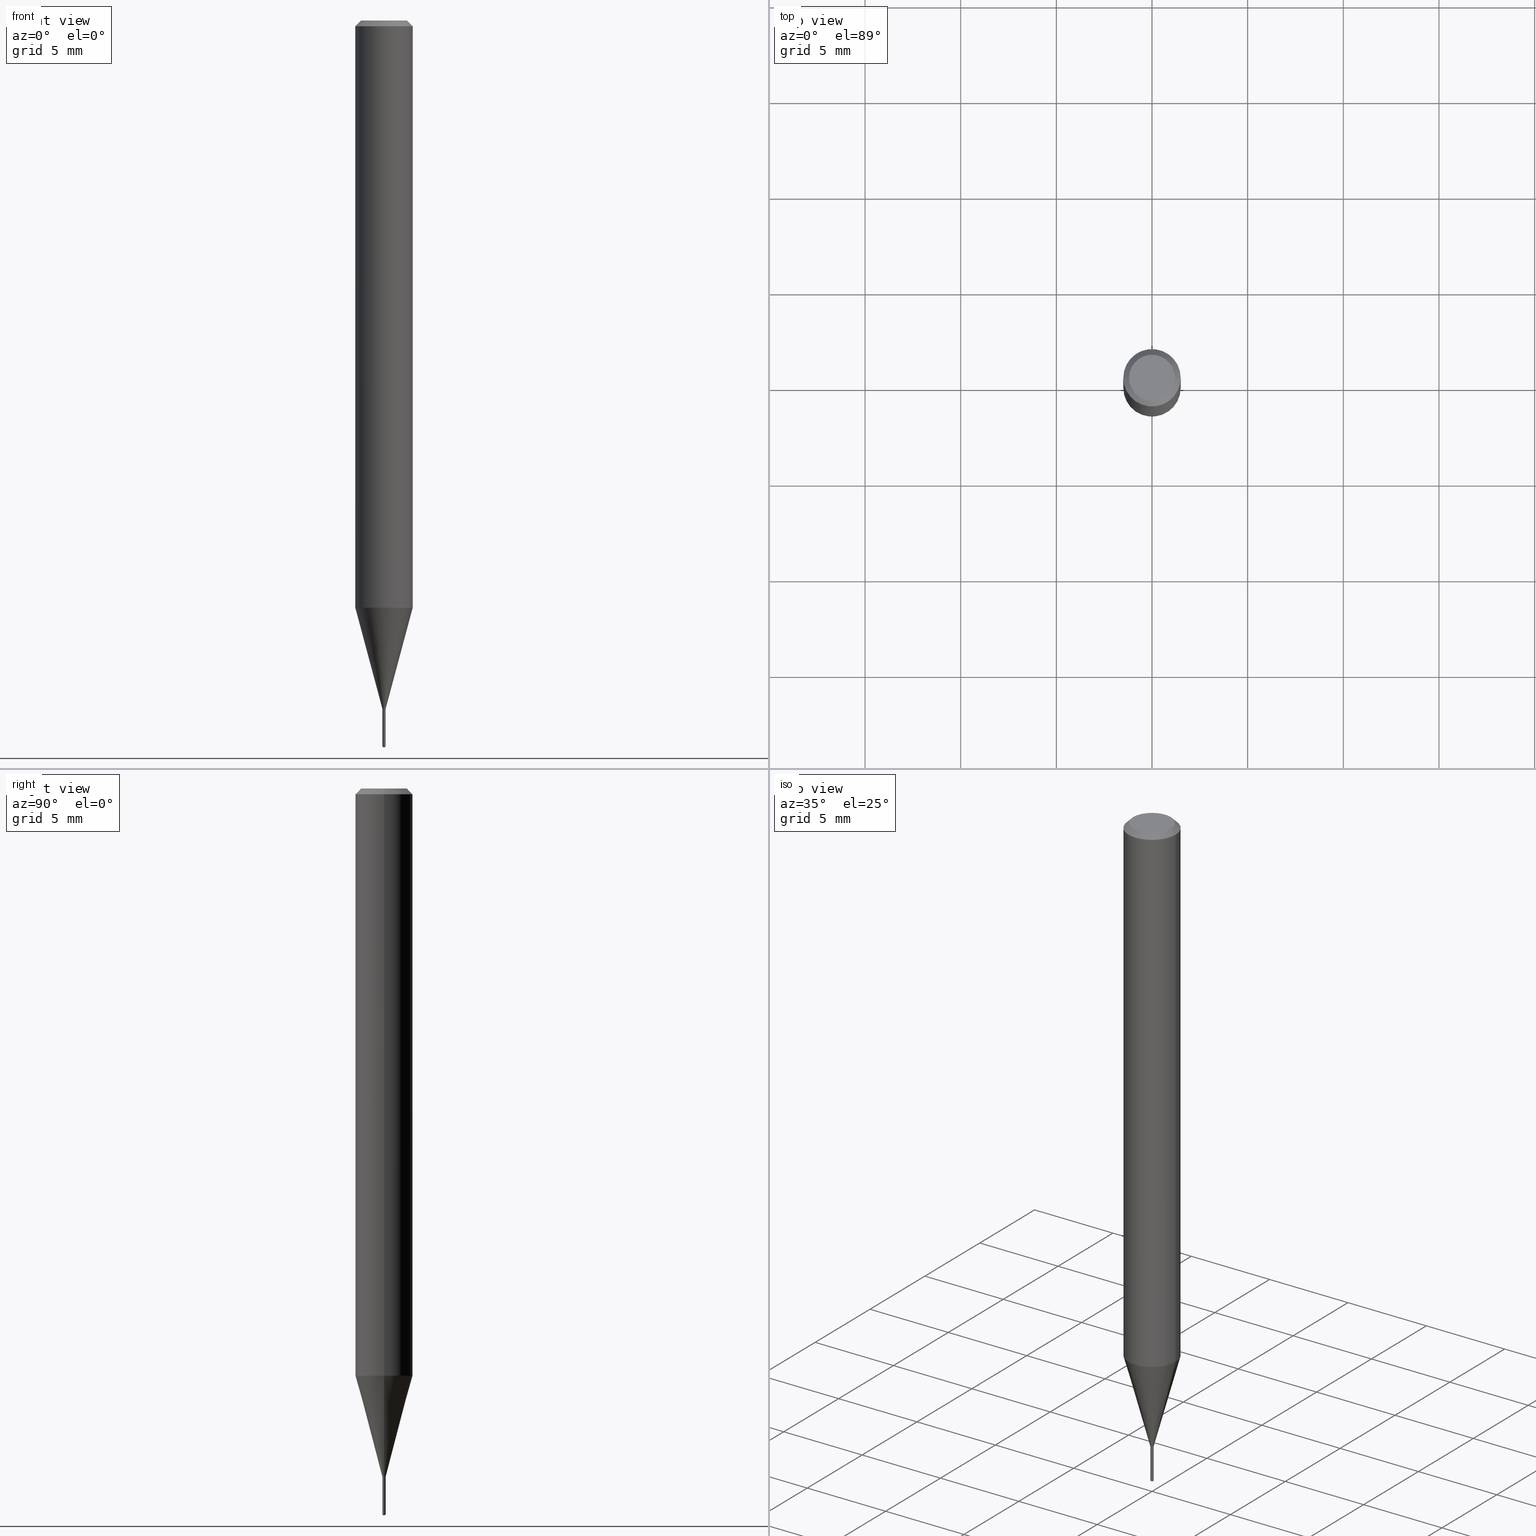
[diagram: canonical four-view strip — front | top / right | iso, engineering-drawing reading convention]
A machine part, canonical four-view strip (front | top / right | iso — engineering-drawing reading convention). The complete STEP part file that produces these views, byte-faithful:
ISO-10303-21;
HEADER;
FILE_DESCRIPTION (( 'STEP AP203' ),
    '1' );
FILE_NAME ('08241.STEP',
    '2024-04-24T13:54:14',
    ( '' ),
    ( '' ),
    'SwSTEP 2.0',
    'SolidWorks 2023',
    '' );
FILE_SCHEMA (( 'CONFIG_CONTROL_DESIGN' ));
ENDSEC;

DATA;
#1 = DIRECTION ( 'NONE',  ( -1.000000000000000000, 6.982962677686266711E-15, 0.000000000000000000 ) ) ;
#2 = DIRECTION ( 'NONE',  ( 2.438088387897960049E-29, -3.491481338843145188E-15, -1.000000000000000000 ) ) ;
#3 = VECTOR ( 'NONE', #410, 39.37007874015748143 ) ;
#4 = CIRCLE ( 'NONE', #131, 0.05904999999999999832 ) ;
#5 = EDGE_CURVE ( 'NONE', #244, #137, #259, .T. ) ;
#6 = DIRECTION ( 'NONE',  ( -6.982962677686265922E-15, -1.000000000000000000, 0.000000000000000000 ) ) ;
#7 = APPROVAL_ROLE ( '' ) ;
#8 = CARTESIAN_POINT ( 'NONE',  ( 3.653064855922137703E-29, -5.217549055750054393E-15, -1.494087116926257508 ) ) ;
#9 = CARTESIAN_POINT ( 'NONE',  ( 0.003350000000000000113, -4.968727093307679884E-15, -1.416399999999999881 ) ) ;
#10 = CARTESIAN_POINT ( 'NONE',  ( -0.003350000000000000113, 2.380318164796335703E-17, -1.647843255235393663E-31 ) ) ;
#11 = CC_DESIGN_APPROVAL ( #234, ( #478 ) ) ;
#12 = DIRECTION ( 'NONE',  ( -2.445468806185136597E-29, 3.491481338843145583E-15, 1.000000000000000000 ) ) ;
#13 = ORIENTED_EDGE ( 'NONE', *, *, #57, .F. ) ;
#14 = PERSON_AND_ORGANIZATION ( #49, #97 ) ;
#15 = VERTEX_POINT ( 'NONE', #404 ) ;
#16 = EDGE_CURVE ( 'NONE', #81, #423, #62, .T. ) ;
#17 = EDGE_LOOP ( 'NONE', ( #356, #132, #473, #179 ) ) ;
#18 = CIRCLE ( 'NONE', #328, 0.003350000000000000113 ) ;
#19 = EDGE_CURVE ( 'NONE', #354, #246, #334, .T. ) ;
#20 = CC_DESIGN_APPROVAL ( #129, ( #222 ) ) ;
#21 = DIRECTION ( 'NONE',  ( -6.982962677686265922E-15, -1.000000000000000000, 0.000000000000000000 ) ) ;
#22 = ORIENTED_EDGE ( 'NONE', *, *, #16, .T. ) ;
#23 = APPROVAL_DATE_TIME ( #396, #129 ) ;
#24 = DIRECTION ( 'NONE',  ( 1.000000000000000000, -6.982962677686265922E-15, 4.876176775795935793E-29 ) ) ;
#25 = DIRECTION ( 'NONE',  ( 1.000000000000000000, -6.982962677686262766E-15, 0.000000000000000000 ) ) ;
#26 = EDGE_LOOP ( 'NONE', ( #168, #274, #28, #215 ) ) ;
#27 = CONICAL_SURFACE ( 'NONE', #221, 65.52281426576713841, 1.029744258676645652 ) ;
#28 = ORIENTED_EDGE ( 'NONE', *, *, #272, .T. ) ;
#29 = APPROVAL_STATUS ( 'not_yet_approved' ) ;
#30 = ORIENTED_EDGE ( 'NONE', *, *, #352, .T. ) ;
#31 = FACE_OUTER_BOUND ( 'NONE', #357, .T. ) ;
#32 = DIRECTION ( 'NONE',  ( -2.445468806185136877E-29, 3.491481338843145188E-15, 1.000000000000000000 ) ) ;
#33 = AXIS2_PLACEMENT_3D ( 'NONE', #159, #200, #466 ) ;
#34 =( GEOMETRIC_REPRESENTATION_CONTEXT ( 3 ) GLOBAL_UNCERTAINTY_ASSIGNED_CONTEXT ( ( #369 ) ) GLOBAL_UNIT_ASSIGNED_CONTEXT ( ( #260, #323, #152 ) ) REPRESENTATION_CONTEXT ( 'NONE', 'WORKASPACE' ) );
#35 = PLANE ( 'NONE',  #120 ) ;
#36 = CARTESIAN_POINT ( 'NONE',  ( 8.265746106709734507E-48, -1.180129479067563789E-33, -3.380025165646692144E-19 ) ) ;
#37 = DIRECTION ( 'NONE',  ( 0.2588190451025212391, 1.565188264969622362E-15, 0.9659258262890679791 ) ) ;
#38 = CC_DESIGN_PERSON_AND_ORGANIZATION_ASSIGNMENT ( #451, #204, ( #141 ) ) ;
#39 = DIRECTION ( 'NONE',  ( 1.000000000000000000, -6.982962677686266711E-15, 4.876176775795936353E-29 ) ) ;
#40 = AXIS2_PLACEMENT_3D ( 'NONE', #133, #145, #258 ) ;
#41 = PERSON_AND_ORGANIZATION_ROLE ( 'design_owner' ) ;
#42 = DIRECTION ( 'NONE',  ( -6.982962677686265922E-15, -1.000000000000000000, 0.000000000000000000 ) ) ;
#43 = APPROVAL_DATE_TIME ( #76, #234 ) ;
#44 = EDGE_CURVE ( 'NONE', #15, #423, #74, .T. ) ;
#45 = CARTESIAN_POINT ( 'NONE',  ( 3.463762017080627501E-29, -4.945334168337430947E-15, -1.416399999999999881 ) ) ;
#46 = VERTEX_POINT ( 'NONE', #303 ) ;
#47 = VECTOR ( 'NONE', #32, 39.37007874015748143 ) ;
#48 = CC_DESIGN_PERSON_AND_ORGANIZATION_ASSIGNMENT ( #263, #41, ( #212 ) ) ;
#49 = PERSON ( 'UNSPECIFIED', 'UNSPECIFIED', 'UNSPECIFIED', ('UNSPECIFIED'), ('UNSPECIFIED'), ('UNSPECIFIED') ) ;
#50 = DIRECTION ( 'NONE',  ( -2.445468806185136597E-29, 3.491481338843145583E-15, 1.000000000000000000 ) ) ;
#51 = ORIENTED_EDGE ( 'NONE', *, *, #456, .T. ) ;
#52 = DIRECTION ( 'NONE',  ( -2.436620093763690716E-29, 3.504153198668089782E-15, 1.000000000000000000 ) ) ;
#53 = CONICAL_SURFACE ( 'NONE', #324, 0.002850000000000000103, 0.7853981633975491983 ) ;
#54 = LOCAL_TIME ( 9, 54, 14.00000000000000000, #316 ) ;
#55 = ORIENTED_EDGE ( 'NONE', *, *, #158, .F. ) ;
#56 = FACE_OUTER_BOUND ( 'NONE', #58, .T. ) ;
#57 = EDGE_CURVE ( 'NONE', #137, #427, #298, .T. ) ;
#58 = EDGE_LOOP ( 'NONE', ( #431, #103, #470, #320 ) ) ;
#59 = CYLINDRICAL_SURFACE ( 'NONE', #339, 0.05905000000000007465 ) ;
#60 = CARTESIAN_POINT ( 'NONE',  ( 3.466207485886812543E-29, -4.948825649676274743E-15, -1.417399999999999993 ) ) ;
#61 = CONICAL_SURFACE ( 'NONE', #68, 65.52281426576713841, 1.029744258676645652 ) ;
#62 = LINE ( 'NONE', #65, #452 ) ;
#63 = PRODUCT_RELATED_PRODUCT_CATEGORY ( 'detail', '', ( #212 ) ) ;
#64 = LINE ( 'NONE', #226, #47 ) ;
#65 = CARTESIAN_POINT ( 'NONE',  ( 0.05905000000000007465, -4.123439461173745750E-16, 2.879382386107504074E-30 ) ) ;
#66 = CARTESIAN_POINT ( 'NONE',  ( 3.466207485886812543E-29, -4.948825649676274743E-15, -1.417399999999999993 ) ) ;
#67 = DIRECTION ( 'NONE',  ( 1.000000000000000000, -6.982962677686266711E-15, 4.876176775795935793E-29 ) ) ;
#68 = AXIS2_PLACEMENT_3D ( 'NONE', #295, #193, #117 ) ;
#69 = CIRCLE ( 'NONE', #140, 0.05904999999999999832 ) ;
#70 = EDGE_CURVE ( 'NONE', #481, #46, #18, .T. ) ;
#71 = DIRECTION ( 'NONE',  ( -2.436620093763690716E-29, 3.504153198668089782E-15, 1.000000000000000000 ) ) ;
#72 = CYLINDRICAL_SURFACE ( 'NONE', #442, 0.003350000000000000113 ) ;
#73 = LINE ( 'NONE', #469, #314 ) ;
#74 = LINE ( 'NONE', #377, #3 ) ;
#75 = VECTOR ( 'NONE', #335, 39.37007874015748143 ) ;
#76 = DATE_AND_TIME ( #378, #195 ) ;
#77 = APPROVAL_PERSON_ORGANIZATION ( #90, #489, #281 ) ;
#78 = CARTESIAN_POINT ( 'NONE',  ( -0.05905000000000015792, -3.799966196582654549E-15, -1.208524770018413408 ) ) ;
#79 = DIRECTION ( 'NONE',  ( 6.982962677686265922E-15, 1.000000000000000000, -3.504153198668089387E-15 ) ) ;
#80 = ADVANCED_FACE ( 'NONE', ( #418 ), #192, .F. ) ;
#81 = VERTEX_POINT ( 'NONE', #237 ) ;
#82 = ORIENTED_EDGE ( 'NONE', *, *, #352, .F. ) ;
#83 = APPROVAL_ROLE ( '' ) ;
#84 = AXIS2_PLACEMENT_3D ( 'NONE', #8, #71, #42 ) ;
#85 = APPROVAL_PERSON_ORGANIZATION ( #332, #234, #7 ) ;
#86 = ORIENTED_EDGE ( 'NONE', *, *, #105, .F. ) ;
#87 = APPLICATION_CONTEXT ( 'configuration controlled 3d designs of mechanical parts and assemblies' ) ;
#88 = APPROVAL_STATUS ( 'not_yet_approved' ) ;
#89 = ORIENTED_EDGE ( 'NONE', *, *, #471, .T. ) ;
#90 = PERSON_AND_ORGANIZATION ( #49, #97 ) ;
#91 = CARTESIAN_POINT ( 'NONE',  ( 2.955409626582096145E-29, -4.219541682048994042E-15, -1.208524770018413408 ) ) ;
#92 = ORIENTED_EDGE ( 'NONE', *, *, #277, .T. ) ;
#93 = ADVANCED_FACE ( 'NONE', ( #240 ), #381, .T. ) ;
#94 = COORDINATED_UNIVERSAL_TIME_OFFSET ( 5, 0, .BEHIND. ) ;
#95 = DIRECTION ( 'NONE',  ( -2.445468806185136597E-29, 3.491481338843145583E-15, 1.000000000000000000 ) ) ;
#96 = AXIS2_PLACEMENT_3D ( 'NONE', #91, #95, #25 ) ;
#97 = ORGANIZATION ( 'UNSPECIFIED', 'UNSPECIFIED', '' ) ;
#98 = ORIENTED_EDGE ( 'NONE', *, *, #293, .T. ) ;
#99 = SECURITY_CLASSIFICATION_LEVEL ( 'unclassified' ) ;
#100 = DIRECTION ( 'NONE',  ( -6.982962677686265133E-15, -1.000000000000000000, 3.602282186708649286E-15 ) ) ;
#101 = ORIENTED_EDGE ( 'NONE', *, *, #247, .F. ) ;
#102 = ADVANCED_FACE ( 'NONE', ( #488 ), #424, .T. ) ;
#103 = ORIENTED_EDGE ( 'NONE', *, *, #57, .T. ) ;
#104 = CONICAL_SURFACE ( 'NONE', #349, 0.003350000000000000113, 0.2617993877991499629 ) ;
#105 = EDGE_CURVE ( 'NONE', #481, #81, #408, .T. ) ;
#106 = ADVANCED_FACE ( 'NONE', ( #111 ), #61, .T. ) ;
#107 = APPLICATION_PROTOCOL_DEFINITION ( 'international standard', 'config_control_design', 1994, #87 ) ;
#108 = CARTESIAN_POINT ( 'NONE',  ( 3.645427322279857336E-29, -5.242563600527328940E-15, -1.496099999999999985 ) ) ;
#109 = ORIENTED_EDGE ( 'NONE', *, *, #333, .F. ) ;
#110 = CARTESIAN_POINT ( 'NONE',  ( -0.003350000000000000113, -4.922403857024178992E-15, -1.416900000000000048 ) ) ;
#111 = FACE_OUTER_BOUND ( 'NONE', #173, .T. ) ;
#112 = ADVANCED_FACE ( 'NONE', ( #448 ), #72, .T. ) ;
#113 = DIRECTION ( 'NONE',  ( 2.436620093763690716E-29, -3.504153198668089387E-15, -1.000000000000000000 ) ) ;
#114 = VECTOR ( 'NONE', #223, 39.37007874015748143 ) ;
#115 = CARTESIAN_POINT ( 'NONE',  ( 3.466207485886812543E-29, -4.948825649676274743E-15, -1.417399999999999993 ) ) ;
#116 = DIRECTION ( 'NONE',  ( 1.000000000000000000, -6.982962677686315620E-15, 0.000000000000000000 ) ) ;
#117 = DIRECTION ( 'NONE',  ( -6.982962677686265133E-15, -1.000000000000000000, 3.602282186708649286E-15 ) ) ;
#118 = DIRECTION ( 'NONE',  ( 0.000000000000000000, 0.000000000000000000, 1.000000000000000000 ) ) ;
#119 = DIRECTION ( 'NONE',  ( -2.445468806185136597E-29, 3.491481338843145583E-15, 1.000000000000000000 ) ) ;
#120 = AXIS2_PLACEMENT_3D ( 'NONE', #450, #2, #326 ) ;
#121 = CIRCLE ( 'NONE', #33, 0.003350000000000000113 ) ;
#122 = LENGTH_MEASURE_WITH_UNIT ( LENGTH_MEASURE( 0.02539999999999999897 ), #462 );
#123 = CC_DESIGN_PERSON_AND_ORGANIZATION_ASSIGNMENT ( #256, #435, ( #222 ) ) ;
#124 = CC_DESIGN_APPROVAL ( #489, ( #141 ) ) ;
#125 = ORIENTED_EDGE ( 'NONE', *, *, #105, .T. ) ;
#126 = ORIENTED_EDGE ( 'NONE', *, *, #167, .T. ) ;
#127 = PERSON_AND_ORGANIZATION_ROLE ( 'creator' ) ;
#128 = ADVANCED_FACE ( 'NONE', ( #406 ), #305, .T. ) ;
#129 = APPROVAL ( #88, 'UNSPECIFIED' ) ;
#130 = ORIENTED_EDGE ( 'NONE', *, *, #386, .F. ) ;
#131 = AXIS2_PLACEMENT_3D ( 'NONE', #282, #217, #178 ) ;
#132 = ORIENTED_EDGE ( 'NONE', *, *, #267, .T. ) ;
#133 = CARTESIAN_POINT ( 'NONE',  ( 3.466207485886812543E-29, -4.948825649676274743E-15, -1.417399999999999993 ) ) ;
#134 = ADVANCED_FACE ( 'NONE', ( #229 ), #35, .F. ) ;
#135 = CALENDAR_DATE ( 2024, 24, 4 ) ;
#136 = DIRECTION ( 'NONE',  ( -2.445468806185136597E-29, 3.491481338843145583E-15, 1.000000000000000000 ) ) ;
#137 = VERTEX_POINT ( 'NONE', #490 ) ;
#138 = VECTOR ( 'NONE', #37, 39.37007874015748854 ) ;
#139 = CARTESIAN_POINT ( 'NONE',  ( -9.227195546406039723E-28, 1.327341848427259281E-13, 37.87397874015748300 ) ) ;
#140 = AXIS2_PLACEMENT_3D ( 'NONE', #366, #487, #185 ) ;
#141 = SECURITY_CLASSIFICATION ( '', '', #99 ) ;
#142 = DATE_AND_TIME ( #213, #330 ) ;
#143 = CYLINDRICAL_SURFACE ( 'NONE', #40, 0.003350000000000000547 ) ;
#144 = EDGE_LOOP ( 'NONE', ( #437, #429, #345 ) ) ;
#145 = DIRECTION ( 'NONE',  ( -2.436620093763690716E-29, 3.504153198668089782E-15, 1.000000000000000000 ) ) ;
#146 = EDGE_CURVE ( 'NONE', #427, #137, #485, .T. ) ;
#147 = ORIENTED_EDGE ( 'NONE', *, *, #380, .T. ) ;
#148 = AXIS2_PLACEMENT_3D ( 'NONE', #232, #153, #67 ) ;
#149 = AXIS2_PLACEMENT_3D ( 'NONE', #115, #374, #194 ) ;
#150 = ORIENTED_EDGE ( 'NONE', *, *, #333, .T. ) ;
#151 = LOCAL_TIME ( 9, 54, 14.00000000000000000, #94 ) ;
#152 =( NAMED_UNIT ( * ) SI_UNIT ( $, .STERADIAN. ) SOLID_ANGLE_UNIT ( ) );
#153 = DIRECTION ( 'NONE',  ( -2.445468806185136597E-29, 3.491481338843145583E-15, 1.000000000000000000 ) ) ;
#154 = DIRECTION ( 'NONE',  ( -2.445468806185136877E-29, 3.491481338843145188E-15, 1.000000000000000000 ) ) ;
#155 = CARTESIAN_POINT ( 'NONE',  ( 3.653064855922137703E-29, -5.217549055750054393E-15, -1.494087116926257508 ) ) ;
#156 = VECTOR ( 'NONE', #447, 39.37007874015748143 ) ;
#157 = DIRECTION ( 'NONE',  ( -2.445468806185136597E-29, 3.491481338843145583E-15, 1.000000000000000000 ) ) ;
#158 = EDGE_CURVE ( 'NONE', #186, #440, #302, .T. ) ;
#159 = CARTESIAN_POINT ( 'NONE',  ( 3.466207485886812543E-29, -4.948825649676274743E-15, -1.417399999999999993 ) ) ;
#160 = DIRECTION ( 'NONE',  ( 2.445468806185136597E-29, -3.491481338843145583E-15, -1.000000000000000000 ) ) ;
#161 = ADVANCED_FACE ( 'NONE', ( #297 ), #266, .T. ) ;
#162 = DIRECTION ( 'NONE',  ( -2.445468806185136597E-29, 3.491481338843145583E-15, 1.000000000000000000 ) ) ;
#163 = CARTESIAN_POINT ( 'NONE',  ( 3.466207485886812543E-29, -4.948825649676274743E-15, -1.417399999999999993 ) ) ;
#164 = CLOSED_SHELL ( 'NONE', ( #161, #411, #106, #299, #80 ) ) ;
#165 = CIRCLE ( 'NONE', #228, 0.003350000000000000113 ) ;
#166 = DIRECTION ( 'NONE',  ( 1.000000000000000000, -6.982962677686172836E-15, 0.000000000000000000 ) ) ;
#167 = EDGE_CURVE ( 'NONE', #243, #280, #121, .T. ) ;
#168 = ORIENTED_EDGE ( 'NONE', *, *, #44, .F. ) ;
#169 = DATE_TIME_ROLE ( 'classification_date' ) ;
#170 = ADVANCED_BREP_SHAPE_REPRESENTATION ( '08241', ( #227, #379, #394 ), #34 ) ;
#171 = ORIENTED_EDGE ( 'NONE', *, *, #242, .F. ) ;
#172 = CIRCLE ( 'NONE', #443, 0.05905000000000015098 ) ;
#173 = EDGE_LOOP ( 'NONE', ( #313, #92, #13 ) ) ;
#174 = PLANE ( 'NONE',  #252 ) ;
#175 = VERTEX_POINT ( 'NONE', #482 ) ;
#176 = CC_DESIGN_DATE_AND_TIME_ASSIGNMENT ( #421, #475, ( #478 ) ) ;
#177 = PERSON_AND_ORGANIZATION ( #49, #97 ) ;
#178 = DIRECTION ( 'NONE',  ( 1.000000000000000000, -6.982962677686266711E-15, 0.000000000000000000 ) ) ;
#179 = ORIENTED_EDGE ( 'NONE', *, *, #293, .F. ) ;
#180 = CARTESIAN_POINT ( 'NONE',  ( 0.000000000000000000, 0.000000000000000000, 0.000000000000000000 ) ) ;
#181 = AXIS2_PLACEMENT_3D ( 'NONE', #337, #12, #166 ) ;
#182 = ORIENTED_EDGE ( 'NONE', *, *, #385, .T. ) ;
#183 = CC_DESIGN_PERSON_AND_ORGANIZATION_ASSIGNMENT ( #177, #318, ( #222 ) ) ;
#184 = EDGE_CURVE ( 'NONE', #354, #175, #322, .T. ) ;
#185 = DIRECTION ( 'NONE',  ( 1.000000000000000000, -6.982962677686266711E-15, 0.000000000000000000 ) ) ;
#186 = VERTEX_POINT ( 'NONE', #78 ) ;
#187 = AXIS2_PLACEMENT_3D ( 'NONE', #36, #367, #364 ) ;
#188 = LINE ( 'NONE', #294, #156 ) ;
#189 = CARTESIAN_POINT ( 'NONE',  ( 0.000000000000000000, 0.000000000000000000, 0.000000000000000000 ) ) ;
#190 = APPROVAL_PERSON_ORGANIZATION ( #14, #129, #83 ) ;
#191 = CARTESIAN_POINT ( 'NONE',  ( 3.464984751483720302E-29, -4.947079909006853240E-15, -1.416900000000000048 ) ) ;
#192 = PLANE ( 'NONE',  #358 ) ;
#193 = DIRECTION ( 'NONE',  ( -2.436620093763690716E-29, 3.504153198668089782E-15, 1.000000000000000000 ) ) ;
#194 = DIRECTION ( 'NONE',  ( -6.982962677686265922E-15, -1.000000000000000000, 0.000000000000000000 ) ) ;
#195 = LOCAL_TIME ( 9, 54, 14.00000000000000000, #415 ) ;
#196 = CC_DESIGN_DATE_AND_TIME_ASSIGNMENT ( #142, #169, ( #141 ) ) ;
#197 = DIRECTION ( 'NONE',  ( -0.7071067811865453523, 2.468850131082234184E-15, -0.7071067811865496822 ) ) ;
#198 = CARTESIAN_POINT ( 'NONE',  ( 3.466207485886812543E-29, -4.948825649676274743E-15, -1.417399999999999993 ) ) ;
#199 = PERSON_AND_ORGANIZATION ( #49, #97 ) ;
#200 = DIRECTION ( 'NONE',  ( -2.436620093763690716E-29, 3.504153198668089782E-15, 1.000000000000000000 ) ) ;
#201 = DIRECTION ( 'NONE',  ( 1.000000000000000000, -6.982962677686266711E-15, 4.876176775795936353E-29 ) ) ;
#202 = DIRECTION ( 'NONE',  ( 1.000000000000000000, -6.982962677686172836E-15, 0.000000000000000000 ) ) ;
#203 = ORIENTED_EDGE ( 'NONE', *, *, #380, .F. ) ;
#204 = PERSON_AND_ORGANIZATION_ROLE ( 'classification_officer' ) ;
#205 = ORIENTED_EDGE ( 'NONE', *, *, #146, .T. ) ;
#206 = CALENDAR_DATE ( 2024, 24, 4 ) ;
#207 = ORIENTED_EDGE ( 'NONE', *, *, #311, .F. ) ;
#208 = DIRECTION ( 'NONE',  ( 1.000000000000000000, -6.982962677686172836E-15, 0.000000000000000000 ) ) ;
#209 = EDGE_LOOP ( 'NONE', ( #207, #98, #125, #203 ) ) ;
#210 = FACE_OUTER_BOUND ( 'NONE', #365, .T. ) ;
#211 = EDGE_CURVE ( 'NONE', #175, #354, #238, .T. ) ;
#212 = PRODUCT ( '08241', '08241', '', ( #241 ) ) ;
#213 = CALENDAR_DATE ( 2024, 24, 4 ) ;
#214 = CARTESIAN_POINT ( 'NONE',  ( 3.466207485886812543E-29, -4.948825649676274743E-15, -1.417399999999999993 ) ) ;
#215 = ORIENTED_EDGE ( 'NONE', *, *, #439, .T. ) ;
#216 = SHAPE_DEFINITION_REPRESENTATION ( #362, #170 ) ;
#217 = DIRECTION ( 'NONE',  ( -2.445468806185136597E-29, 3.491481338843145583E-15, 1.000000000000000000 ) ) ;
#218 = ORIENTED_EDGE ( 'NONE', *, *, #16, .F. ) ;
#219 = EDGE_CURVE ( 'NONE', #427, #280, #269, .T. ) ;
#220 = ADVANCED_FACE ( 'NONE', ( #231 ), #359, .T. ) ;
#221 = AXIS2_PLACEMENT_3D ( 'NONE', #139, #436, #100 ) ;
#222 = PRODUCT_DEFINITION_FORMATION_WITH_SPECIFIED_SOURCE ( 'ANY', '', #212, .NOT_KNOWN. ) ;
#223 = DIRECTION ( 'NONE',  ( -2.436620093763690997E-29, 3.504153198668089387E-15, 1.000000000000000000 ) ) ;
#224 = ORIENTED_EDGE ( 'NONE', *, *, #439, .F. ) ;
#225 = LINE ( 'NONE', #10, #75 ) ;
#226 = CARTESIAN_POINT ( 'NONE',  ( 0.003350000000000000113, -2.339292497024899523E-17, 1.633519219891638536E-31 ) ) ;
#227 = MANIFOLD_SOLID_BREP ( 'Body-Move/Copy2[1]', #164 ) ;
#228 = AXIS2_PLACEMENT_3D ( 'NONE', #191, #454, #296 ) ;
#229 = FACE_OUTER_BOUND ( 'NONE', #472, .T. ) ;
#230 = CC_DESIGN_SECURITY_CLASSIFICATION ( #141, ( #222 ) ) ;
#231 = FACE_OUTER_BOUND ( 'NONE', #26, .T. ) ;
#232 = CARTESIAN_POINT ( 'NONE',  ( 0.000000000000000000, 0.000000000000000000, 0.000000000000000000 ) ) ;
#233 = DIRECTION ( 'NONE',  ( 1.000000000000000000, -6.982962677686172836E-15, 0.000000000000000000 ) ) ;
#234 = APPROVAL ( #29, 'UNSPECIFIED' ) ;
#235 = CARTESIAN_POINT ( 'NONE',  ( -2.339292497021432849E-17, -0.003350000000004948846, -1.417399999999999993 ) ) ;
#236 = AXIS2_PLACEMENT_3D ( 'NONE', #155, #414, #6 ) ;
#237 = CARTESIAN_POINT ( 'NONE',  ( 0.05905000000000015792, -4.631885628166368963E-15, -1.208524770018413408 ) ) ;
#238 = CIRCLE ( 'NONE', #393, 0.002850000000000000103 ) ;
#239 = DIRECTION ( 'NONE',  ( -2.445468806185136597E-29, 3.491481338843145583E-15, 1.000000000000000000 ) ) ;
#240 = FACE_OUTER_BOUND ( 'NONE', #398, .T. ) ;
#241 = MECHANICAL_CONTEXT ( 'NONE', #87, 'mechanical' ) ;
#242 = EDGE_CURVE ( 'NONE', #15, #445, #384, .T. ) ;
#243 = VERTEX_POINT ( 'NONE', #444 ) ;
#244 = VERTEX_POINT ( 'NONE', #108 ) ;
#245 = CIRCLE ( 'NONE', #426, 0.003350000000000000113 ) ;
#246 = VERTEX_POINT ( 'NONE', #110 ) ;
#247 = EDGE_CURVE ( 'NONE', #395, #481, #64, .T. ) ;
#248 = DIRECTION ( 'NONE',  ( 1.000000000000000000, -6.982962677686266711E-15, 4.876185090822587894E-29 ) ) ;
#249 = EDGE_LOOP ( 'NONE', ( #171, #467, #150, #315 ) ) ;
#250 = EDGE_CURVE ( 'NONE', #137, #243, #188, .T. ) ;
#251 = CARTESIAN_POINT ( 'NONE',  ( 3.466207485886812543E-29, -4.948825649676274743E-15, -1.417399999999999993 ) ) ;
#252 = AXIS2_PLACEMENT_3D ( 'NONE', #214, #355, #24 ) ;
#253 = APPROVAL_DATE_TIME ( #310, #489 ) ;
#254 = ORIENTED_EDGE ( 'NONE', *, *, #311, .T. ) ;
#255 = DESIGN_CONTEXT ( 'detailed design', #353, 'design' ) ;
#256 = PERSON_AND_ORGANIZATION ( #49, #97 ) ;
#257 = EDGE_LOOP ( 'NONE', ( #205, #433, #130, #309 ) ) ;
#258 = DIRECTION ( 'NONE',  ( -6.982962677686265922E-15, -1.000000000000000000, 0.000000000000000000 ) ) ;
#259 = LINE ( 'NONE', #262, #289 ) ;
#260 =( CONVERSION_BASED_UNIT ( 'INCH', #122 ) LENGTH_UNIT ( ) NAMED_UNIT ( #460 ) );
#261 = CARTESIAN_POINT ( 'NONE',  ( 2.888098660104663328E-31, -4.123439461173779030E-17, -0.01181000000000006871 ) ) ;
#262 = CARTESIAN_POINT ( 'NONE',  ( 3.670731612216353787E-29, -5.206641412295576042E-15, -1.496099999999999985 ) ) ;
#263 = PERSON_AND_ORGANIZATION ( #49, #97 ) ;
#264 = CARTESIAN_POINT ( 'NONE',  ( 0.000000000000000000, 0.000000000000000000, 0.000000000000000000 ) ) ;
#265 = CIRCLE ( 'NONE', #96, 0.05905000000000015098 ) ;
#266 = CYLINDRICAL_SURFACE ( 'NONE', #149, 0.003350000000000000547 ) ;
#267 = EDGE_CURVE ( 'NONE', #246, #395, #165, .T. ) ;
#268 = DIRECTION ( 'NONE',  ( -0.7071067811866187380, 7.493145998870611329E-15, 0.7071067811864760744 ) ) ;
#269 = LINE ( 'NONE', #413, #114 ) ;
#270 = DIRECTION ( 'NONE',  ( 1.000000000000000000, -6.982962677686266711E-15, 4.876176775795935793E-29 ) ) ;
#271 = CARTESIAN_POINT ( 'NONE',  ( -0.002850000000000000103, -4.928575181707112540E-15, -1.417399999999999993 ) ) ;
#272 = EDGE_CURVE ( 'NONE', #445, #440, #307, .T. ) ;
#273 = ORIENTED_EDGE ( 'NONE', *, *, #184, .T. ) ;
#274 = ORIENTED_EDGE ( 'NONE', *, *, #300, .F. ) ;
#275 = CALENDAR_DATE ( 2024, 24, 4 ) ;
#276 = ORIENTED_EDGE ( 'NONE', *, *, #158, .T. ) ;
#277 = EDGE_CURVE ( 'NONE', #244, #427, #73, .T. ) ;
#278 = EDGE_LOOP ( 'NONE', ( #348, #254, #383, #86 ) ) ;
#279 = DIRECTION ( 'NONE',  ( -2.445468806185136597E-29, 3.491481338843145583E-15, 1.000000000000000000 ) ) ;
#280 = VERTEX_POINT ( 'NONE', #235 ) ;
#281 = APPROVAL_ROLE ( '' ) ;
#282 = CARTESIAN_POINT ( 'NONE',  ( 2.888098660104663328E-31, -4.123439461173779030E-17, -0.01181000000000006871 ) ) ;
#283 = ORIENTED_EDGE ( 'NONE', *, *, #471, .F. ) ;
#284 = CLOSED_SHELL ( 'NONE', ( #344, #458, #93, #288, #128, #112, #102, #416, #220, #134, #402, #474 ) ) ;
#285 = CIRCLE ( 'NONE', #417, 0.003350000000000000113 ) ;
#286 = DIRECTION ( 'NONE',  ( 1.000000000000000000, -6.982962677686262766E-15, 0.000000000000000000 ) ) ;
#287 = CARTESIAN_POINT ( 'NONE',  ( 0.05904999999999999832, -4.535783407291118600E-16, -0.01181000000000006871 ) ) ;
#288 = ADVANCED_FACE ( 'NONE', ( #422 ), #104, .T. ) ;
#289 = VECTOR ( 'NONE', #400, 39.37007874015748854 ) ;
#290 = CIRCLE ( 'NONE', #181, 0.003350000000000000113 ) ;
#291 = FACE_OUTER_BOUND ( 'NONE', #249, .T. ) ;
#292 = ORIENTED_EDGE ( 'NONE', *, *, #211, .T. ) ;
#293 = EDGE_CURVE ( 'NONE', #46, #481, #290, .T. ) ;
#294 = CARTESIAN_POINT ( 'NONE',  ( 2.380318164799802069E-17, 0.003349999999995051814, -1.417399999999999993 ) ) ;
#295 = CARTESIAN_POINT ( 'NONE',  ( -9.227195546406039723E-28, 1.327341848427259281E-13, 37.87397874015748300 ) ) ;
#296 = DIRECTION ( 'NONE',  ( 1.000000000000000000, -6.982962677686172836E-15, 0.000000000000000000 ) ) ;
#297 = FACE_OUTER_BOUND ( 'NONE', #257, .T. ) ;
#298 = CIRCLE ( 'NONE', #84, 0.003350000000000000980 ) ;
#299 = ADVANCED_FACE ( 'NONE', ( #56 ), #143, .T. ) ;
#300 = EDGE_CURVE ( 'NONE', #445, #15, #329, .T. ) ;
#301 = CONICAL_SURFACE ( 'NONE', #407, 0.05904999999999999832, 0.7853981633974452814 ) ;
#302 = LINE ( 'NONE', #455, #338 ) ;
#303 = CARTESIAN_POINT ( 'NONE',  ( -0.003350000000000000113, -4.922403857024178992E-15, -1.416399999999999881 ) ) ;
#304 = LINE ( 'NONE', #459, #360 ) ;
#305 = CYLINDRICAL_SURFACE ( 'NONE', #148, 0.003350000000000000113 ) ;
#306 = DIRECTION ( 'NONE',  ( 0.7071067811866187380, -2.468850131083003717E-15, 0.7071067811864760744 ) ) ;
#307 = LINE ( 'NONE', #465, #434 ) ;
#308 = ORIENTED_EDGE ( 'NONE', *, *, #211, .F. ) ;
#309 = ORIENTED_EDGE ( 'NONE', *, *, #219, .F. ) ;
#310 = DATE_AND_TIME ( #135, #151 ) ;
#311 = EDGE_CURVE ( 'NONE', #46, #186, #438, .T. ) ;
#312 = AXIS2_PLACEMENT_3D ( 'NONE', #264, #162, #39 ) ;
#313 = ORIENTED_EDGE ( 'NONE', *, *, #5, .F. ) ;
#314 = VECTOR ( 'NONE', #425, 39.37007874015748854 ) ;
#315 = ORIENTED_EDGE ( 'NONE', *, *, #272, .F. ) ;
#316 = COORDINATED_UNIVERSAL_TIME_OFFSET ( 5, 0, .BEHIND. ) ;
#317 = CARTESIAN_POINT ( 'NONE',  ( -0.003350000000000000113, -4.921530986689467846E-15, -1.416399999999999881 ) ) ;
#318 = PERSON_AND_ORGANIZATION_ROLE ( 'creator' ) ;
#319 = EDGE_LOOP ( 'NONE', ( #292, #480, #82, #283 ) ) ;
#320 = ORIENTED_EDGE ( 'NONE', *, *, #167, .F. ) ;
#321 = CARTESIAN_POINT ( 'NONE',  ( 0.000000000000000000, 0.000000000000000000, 0.000000000000000000 ) ) ;
#322 = CIRCLE ( 'NONE', #401, 0.002850000000000000103 ) ;
#323 =( NAMED_UNIT ( * ) PLANE_ANGLE_UNIT ( ) SI_UNIT ( $, .RADIAN. ) );
#324 = AXIS2_PLACEMENT_3D ( 'NONE', #66, #483, #446 ) ;
#325 = DIRECTION ( 'NONE',  ( -2.445468806185136877E-29, 3.491481338843145188E-15, 1.000000000000000000 ) ) ;
#326 = DIRECTION ( 'NONE',  ( -1.000000000000000000, 6.982962677686265922E-15, -4.876176775795935793E-29 ) ) ;
#327 = CARTESIAN_POINT ( 'NONE',  ( 3.463762017080627501E-29, -4.945334168337430947E-15, -1.416399999999999881 ) ) ;
#328 = AXIS2_PLACEMENT_3D ( 'NONE', #327, #371, #233 ) ;
#329 = CIRCLE ( 'NONE', #464, 0.04724000000000000421 ) ;
#330 = LOCAL_TIME ( 9, 54, 14.00000000000000000, #341 ) ;
#331 = DIRECTION ( 'NONE',  ( 1.000000000000000000, -6.982962677686172836E-15, 0.000000000000000000 ) ) ;
#332 = PERSON_AND_ORGANIZATION ( #49, #97 ) ;
#333 = EDGE_CURVE ( 'NONE', #423, #440, #4, .T. ) ;
#334 = LINE ( 'NONE', #271, #375 ) ;
#335 = DIRECTION ( 'NONE',  ( -2.445468806185136877E-29, 3.491481338843145188E-15, 1.000000000000000000 ) ) ;
#336 = CARTESIAN_POINT ( 'NONE',  ( -0.05904999999999999832, -1.710812552864025407E-15, -0.01181000000000006871 ) ) ;
#337 = CARTESIAN_POINT ( 'NONE',  ( 3.463762017080627501E-29, -4.945334168337430947E-15, -1.416399999999999881 ) ) ;
#338 = VECTOR ( 'NONE', #154, 39.37007874015748143 ) ;
#339 = AXIS2_PLACEMENT_3D ( 'NONE', #180, #239, #201 ) ;
#340 = ORIENTED_EDGE ( 'NONE', *, *, #386, .T. ) ;
#341 = COORDINATED_UNIVERSAL_TIME_OFFSET ( 5, 0, .BEHIND. ) ;
#342 = ORIENTED_EDGE ( 'NONE', *, *, #70, .F. ) ;
#343 = CC_DESIGN_PERSON_AND_ORGANIZATION_ASSIGNMENT ( #199, #127, ( #478 ) ) ;
#344 = ADVANCED_FACE ( 'NONE', ( #389 ), #453, .T. ) ;
#345 = ORIENTED_EDGE ( 'NONE', *, *, #146, .F. ) ;
#346 = CARTESIAN_POINT ( 'NONE',  ( -0.002850000000000000103, -4.925925954533001339E-15, -1.417399999999999993 ) ) ;
#347 = AXIS2_PLACEMENT_3D ( 'NONE', #461, #457, #331 ) ;
#348 = ORIENTED_EDGE ( 'NONE', *, *, #70, .T. ) ;
#349 = AXIS2_PLACEMENT_3D ( 'NONE', #45, #382, #202 ) ;
#350 = LOCAL_TIME ( 9, 54, 14.00000000000000000, #387 ) ;
#351 = CARTESIAN_POINT ( 'NONE',  ( 8.265746106709734507E-48, -1.180129479067563789E-33, -3.380025165646692144E-19 ) ) ;
#352 = EDGE_CURVE ( 'NONE', #395, #246, #285, .T. ) ;
#353 = APPLICATION_CONTEXT ( 'configuration controlled 3d designs of mechanical parts and assemblies' ) ;
#354 = VERTEX_POINT ( 'NONE', #346 ) ;
#355 = DIRECTION ( 'NONE',  ( -2.438088387897960049E-29, 3.491481338843145188E-15, 1.000000000000000000 ) ) ;
#356 = ORIENTED_EDGE ( 'NONE', *, *, #456, .F. ) ;
#357 = EDGE_LOOP ( 'NONE', ( #392, #273, #89, #441 ) ) ;
#358 = AXIS2_PLACEMENT_3D ( 'NONE', #198, #113, #79 ) ;
#359 = CONICAL_SURFACE ( 'NONE', #477, 0.05904999999999999832, 0.7853981633974452814 ) ;
#360 = VECTOR ( 'NONE', #306, 39.37007874015748854 ) ;
#361 = CARTESIAN_POINT ( 'NONE',  ( 3.464984751483720302E-29, -4.947079909006853240E-15, -1.416900000000000048 ) ) ;
#362 = PRODUCT_DEFINITION_SHAPE ( 'NONE', 'NONE',  #478 ) ;
#363 = APPLICATION_PROTOCOL_DEFINITION ( 'international standard', 'config_control_design', 1994, #353 ) ;
#364 = DIRECTION ( 'NONE',  ( 1.000000000000000000, -6.982962677686266711E-15, 4.876185090822587894E-29 ) ) ;
#365 = EDGE_LOOP ( 'NONE', ( #308, #390 ) ) ;
#366 = CARTESIAN_POINT ( 'NONE',  ( 2.888098660104663328E-31, -4.123439461173779030E-17, -0.01181000000000006871 ) ) ;
#367 = DIRECTION ( 'NONE',  ( -2.445468806185136597E-29, 3.491481338843145583E-15, 1.000000000000000000 ) ) ;
#368 = ORIENTED_EDGE ( 'NONE', *, *, #300, .T. ) ;
#369 = UNCERTAINTY_MEASURE_WITH_UNIT (LENGTH_MEASURE( 1.000000000000000082E-05 ), #260, 'distance_accuracy_value', 'NONE');
#370 = DIRECTION ( 'NONE',  ( 1.000000000000000000, 0.000000000000000000, 0.000000000000000000 ) ) ;
#371 = DIRECTION ( 'NONE',  ( -2.445468806185136597E-29, 3.491481338843145583E-15, 1.000000000000000000 ) ) ;
#372 = CARTESIAN_POINT ( 'NONE',  ( 0.003350000000000000113, -4.968727093307679884E-15, -1.416399999999999881 ) ) ;
#373 = CARTESIAN_POINT ( 'NONE',  ( 3.466207485886812543E-29, -4.948825649676274743E-15, -1.417399999999999993 ) ) ;
#374 = DIRECTION ( 'NONE',  ( -2.436620093763690716E-29, 3.504153198668089782E-15, 1.000000000000000000 ) ) ;
#375 = VECTOR ( 'NONE', #268, 39.37007874015748854 ) ;
#376 = AXIS2_PLACEMENT_3D ( 'NONE', #60, #279, #428 ) ;
#377 = CARTESIAN_POINT ( 'NONE',  ( 0.05904999999999999832, -4.463468013801466955E-16, -0.01181000000000006871 ) ) ;
#378 = CALENDAR_DATE ( 2024, 24, 4 ) ;
#379 = MANIFOLD_SOLID_BREP ( 'Body-Move/Copy2[2]', #284 ) ;
#380 = EDGE_CURVE ( 'NONE', #186, #81, #172, .T. ) ;
#381 = CYLINDRICAL_SURFACE ( 'NONE', #312, 0.05905000000000007465 ) ;
#382 = DIRECTION ( 'NONE',  ( -2.445468806185136597E-29, 3.491481338843145583E-15, 1.000000000000000000 ) ) ;
#383 = ORIENTED_EDGE ( 'NONE', *, *, #385, .F. ) ;
#384 = CIRCLE ( 'NONE', #187, 0.04724000000000000421 ) ;
#385 = EDGE_CURVE ( 'NONE', #81, #186, #265, .T. ) ;
#386 = EDGE_CURVE ( 'NONE', #280, #243, #245, .T. ) ;
#387 = COORDINATED_UNIVERSAL_TIME_OFFSET ( 5, 0, .BEHIND. ) ;
#388 = EDGE_LOOP ( 'NONE', ( #30, #51, #342, #101 ) ) ;
#389 = FACE_OUTER_BOUND ( 'NONE', #319, .T. ) ;
#390 = ORIENTED_EDGE ( 'NONE', *, *, #184, .F. ) ;
#391 = DIRECTION ( 'NONE',  ( -2.445468806185136597E-29, 3.491481338843145583E-15, 1.000000000000000000 ) ) ;
#392 = ORIENTED_EDGE ( 'NONE', *, *, #19, .F. ) ;
#393 = AXIS2_PLACEMENT_3D ( 'NONE', #163, #463, #116 ) ;
#394 = AXIS2_PLACEMENT_3D ( 'NONE', #321, #118, #370 ) ;
#395 = VERTEX_POINT ( 'NONE', #432 ) ;
#396 = DATE_AND_TIME ( #206, #350 ) ;
#397 = FACE_OUTER_BOUND ( 'NONE', #484, .T. ) ;
#398 = EDGE_LOOP ( 'NONE', ( #182, #276, #109, #218 ) ) ;
#399 = DIRECTION ( 'NONE',  ( -0.2588190451025212391, 5.211531920934549464E-15, 0.9659258262890679791 ) ) ;
#400 = DIRECTION ( 'NONE',  ( 6.090539988449746092E-15, 0.8571673007021094470, 0.5150380749100585964 ) ) ;
#401 = AXIS2_PLACEMENT_3D ( 'NONE', #373, #157, #412 ) ;
#402 = ADVANCED_FACE ( 'NONE', ( #210 ), #174, .F. ) ;
#403 = CARTESIAN_POINT ( 'NONE',  ( -2.339292497021246419E-17, -0.003350000000005218161, -1.494087116926257508 ) ) ;
#404 = CARTESIAN_POINT ( 'NONE',  ( 0.04724000000000000421, -3.852183633974369345E-16, -3.380025165621689721E-19 ) ) ;
#405 = DIRECTION ( 'NONE',  ( -1.000000000000000000, 6.982962677686266711E-15, 0.000000000000000000 ) ) ;
#406 = FACE_OUTER_BOUND ( 'NONE', #388, .T. ) ;
#407 = AXIS2_PLACEMENT_3D ( 'NONE', #261, #160, #405 ) ;
#408 = LINE ( 'NONE', #372, #138 ) ;
#409 = CARTESIAN_POINT ( 'NONE',  ( 2.888098660104663328E-31, -4.123439461173779030E-17, -0.01181000000000006871 ) ) ;
#410 = DIRECTION ( 'NONE',  ( 0.7071067811865453523, -7.319954787623248157E-15, -0.7071067811865496822 ) ) ;
#411 = ADVANCED_FACE ( 'NONE', ( #476 ), #27, .T. ) ;
#412 = DIRECTION ( 'NONE',  ( 1.000000000000000000, -6.982962677686315620E-15, 0.000000000000000000 ) ) ;
#413 = CARTESIAN_POINT ( 'NONE',  ( -2.339292497021433157E-17, -0.003350000000004949279, -1.417399999999999993 ) ) ;
#414 = DIRECTION ( 'NONE',  ( -2.436620093763690716E-29, 3.504153198668089782E-15, 1.000000000000000000 ) ) ;
#415 = COORDINATED_UNIVERSAL_TIME_OFFSET ( 5, 0, .BEHIND. ) ;
#416 = ADVANCED_FACE ( 'NONE', ( #397 ), #59, .T. ) ;
#417 = AXIS2_PLACEMENT_3D ( 'NONE', #361, #50, #208 ) ;
#418 = FACE_OUTER_BOUND ( 'NONE', #420, .T. ) ;
#419 = CARTESIAN_POINT ( 'NONE',  ( -0.04724000000000000421, 3.504923541997677355E-16, -3.380025165670481712E-19 ) ) ;
#420 = EDGE_LOOP ( 'NONE', ( #340, #126 ) ) ;
#421 = DATE_AND_TIME ( #275, #54 ) ;
#422 = FACE_OUTER_BOUND ( 'NONE', #278, .T. ) ;
#423 = VERTEX_POINT ( 'NONE', #287 ) ;
#424 = CONICAL_SURFACE ( 'NONE', #347, 0.003350000000000000113, 0.2617993877991499629 ) ;
#425 = DIRECTION ( 'NONE',  ( -5.985567269335910514E-15, -0.8571673007021058943, 0.5150380749100645916 ) ) ;
#426 = AXIS2_PLACEMENT_3D ( 'NONE', #251, #52, #21 ) ;
#427 = VERTEX_POINT ( 'NONE', #403 ) ;
#428 = DIRECTION ( 'NONE',  ( 1.000000000000000000, -6.982962677686315620E-15, 0.000000000000000000 ) ) ;
#429 = ORIENTED_EDGE ( 'NONE', *, *, #5, .T. ) ;
#430 = CARTESIAN_POINT ( 'NONE',  ( 2.955409626582096145E-29, -4.219541682048994042E-15, -1.208524770018413408 ) ) ;
#431 = ORIENTED_EDGE ( 'NONE', *, *, #250, .F. ) ;
#432 = CARTESIAN_POINT ( 'NONE',  ( 0.003350000000000000113, -4.970472833977102176E-15, -1.416900000000000048 ) ) ;
#433 = ORIENTED_EDGE ( 'NONE', *, *, #250, .T. ) ;
#434 = VECTOR ( 'NONE', #197, 39.37007874015748143 ) ;
#435 = PERSON_AND_ORGANIZATION_ROLE ( 'design_supplier' ) ;
#436 = DIRECTION ( 'NONE',  ( -2.436620093763690716E-29, 3.504153198668089782E-15, 1.000000000000000000 ) ) ;
#437 = ORIENTED_EDGE ( 'NONE', *, *, #277, .F. ) ;
#438 = LINE ( 'NONE', #317, #486 ) ;
#439 = EDGE_CURVE ( 'NONE', #440, #423, #69, .T. ) ;
#440 = VERTEX_POINT ( 'NONE', #336 ) ;
#441 = ORIENTED_EDGE ( 'NONE', *, *, #267, .F. ) ;
#442 = AXIS2_PLACEMENT_3D ( 'NONE', #189, #119, #270 ) ;
#443 = AXIS2_PLACEMENT_3D ( 'NONE', #430, #391, #286 ) ;
#444 = CARTESIAN_POINT ( 'NONE',  ( 2.380318164799990656E-17, 0.003349999999995051381, -1.417399999999999993 ) ) ;
#445 = VERTEX_POINT ( 'NONE', #419 ) ;
#446 = DIRECTION ( 'NONE',  ( 1.000000000000000000, -6.982962677686315620E-15, 0.000000000000000000 ) ) ;
#447 = DIRECTION ( 'NONE',  ( -2.436620093763690997E-29, 3.504153198668089387E-15, 1.000000000000000000 ) ) ;
#448 = FACE_OUTER_BOUND ( 'NONE', #17, .T. ) ;
#449 = DIRECTION ( 'NONE',  ( 2.445468806185136597E-29, -3.491481338843145583E-15, -1.000000000000000000 ) ) ;
#450 = CARTESIAN_POINT ( 'NONE',  ( 4.132873053354867254E-48, -5.900647395337818946E-34, -1.690012582823346072E-19 ) ) ;
#451 = PERSON_AND_ORGANIZATION ( #49, #97 ) ;
#452 = VECTOR ( 'NONE', #325, 39.37007874015748143 ) ;
#453 = CONICAL_SURFACE ( 'NONE', #376, 0.002850000000000000103, 0.7853981633975491983 ) ;
#454 = DIRECTION ( 'NONE',  ( -2.445468806185136597E-29, 3.491481338843145583E-15, 1.000000000000000000 ) ) ;
#455 = CARTESIAN_POINT ( 'NONE',  ( -0.05905000000000007465, 4.195754854663396902E-16, -2.904631170795525395E-30 ) ) ;
#456 = EDGE_CURVE ( 'NONE', #246, #46, #225, .T. ) ;
#457 = DIRECTION ( 'NONE',  ( -2.445468806185136597E-29, 3.491481338843145583E-15, 1.000000000000000000 ) ) ;
#458 = ADVANCED_FACE ( 'NONE', ( #291 ), #301, .T. ) ;
#459 = CARTESIAN_POINT ( 'NONE',  ( 0.002850000000000000103, -4.968727093307680673E-15, -1.417399999999999993 ) ) ;
#460 = DIMENSIONAL_EXPONENTS ( 1.000000000000000000, 0.000000000000000000, 0.000000000000000000, 0.000000000000000000, 0.000000000000000000, 0.000000000000000000, 0.000000000000000000 ) ;
#461 = CARTESIAN_POINT ( 'NONE',  ( 3.463762017080627501E-29, -4.945334168337430947E-15, -1.416399999999999881 ) ) ;
#462 =( LENGTH_UNIT ( ) NAMED_UNIT ( * ) SI_UNIT ( $, .METRE. ) );
#463 = DIRECTION ( 'NONE',  ( -2.445468806185136597E-29, 3.491481338843145583E-15, 1.000000000000000000 ) ) ;
#464 = AXIS2_PLACEMENT_3D ( 'NONE', #351, #136, #248 ) ;
#465 = CARTESIAN_POINT ( 'NONE',  ( -0.05904999999999999832, 3.711095515056362547E-16, -0.01181000000000006871 ) ) ;
#466 = DIRECTION ( 'NONE',  ( -6.982962677686265922E-15, -1.000000000000000000, 0.000000000000000000 ) ) ;
#467 = ORIENTED_EDGE ( 'NONE', *, *, #44, .T. ) ;
#468 = ORIENTED_EDGE ( 'NONE', *, *, #242, .T. ) ;
#469 = CARTESIAN_POINT ( 'NONE',  ( 3.645427322279857336E-29, -5.242563600527328151E-15, -1.496099999999999985 ) ) ;
#470 = ORIENTED_EDGE ( 'NONE', *, *, #219, .T. ) ;
#471 = EDGE_CURVE ( 'NONE', #175, #395, #304, .T. ) ;
#472 = EDGE_LOOP ( 'NONE', ( #368, #468 ) ) ;
#473 = ORIENTED_EDGE ( 'NONE', *, *, #247, .T. ) ;
#474 = ADVANCED_FACE ( 'NONE', ( #31 ), #53, .T. ) ;
#475 = DATE_TIME_ROLE ( 'creation_date' ) ;
#476 = FACE_OUTER_BOUND ( 'NONE', #144, .T. ) ;
#477 = AXIS2_PLACEMENT_3D ( 'NONE', #409, #449, #1 ) ;
#478 = PRODUCT_DEFINITION ( 'UNKNOWN', '', #222, #255 ) ;
#479 = APPROVAL_STATUS ( 'not_yet_approved' ) ;
#480 = ORIENTED_EDGE ( 'NONE', *, *, #19, .T. ) ;
#481 = VERTEX_POINT ( 'NONE', #9 ) ;
#482 = CARTESIAN_POINT ( 'NONE',  ( 0.002850000000000000103, -4.968727093307680673E-15, -1.417399999999999993 ) ) ;
#483 = DIRECTION ( 'NONE',  ( -2.445468806185136597E-29, 3.491481338843145583E-15, 1.000000000000000000 ) ) ;
#484 = EDGE_LOOP ( 'NONE', ( #55, #147, #22, #224 ) ) ;
#485 = CIRCLE ( 'NONE', #236, 0.003350000000000000980 ) ;
#486 = VECTOR ( 'NONE', #399, 39.37007874015748854 ) ;
#487 = DIRECTION ( 'NONE',  ( -2.445468806185136597E-29, 3.491481338843145583E-15, 1.000000000000000000 ) ) ;
#488 = FACE_OUTER_BOUND ( 'NONE', #209, .T. ) ;
#489 = APPROVAL ( #479, 'UNSPECIFIED' ) ;
#490 = CARTESIAN_POINT ( 'NONE',  ( 2.380318164799988807E-17, 0.003349999999994782499, -1.494087116926257508 ) ) ;
ENDSEC;
END-ISO-10303-21;
